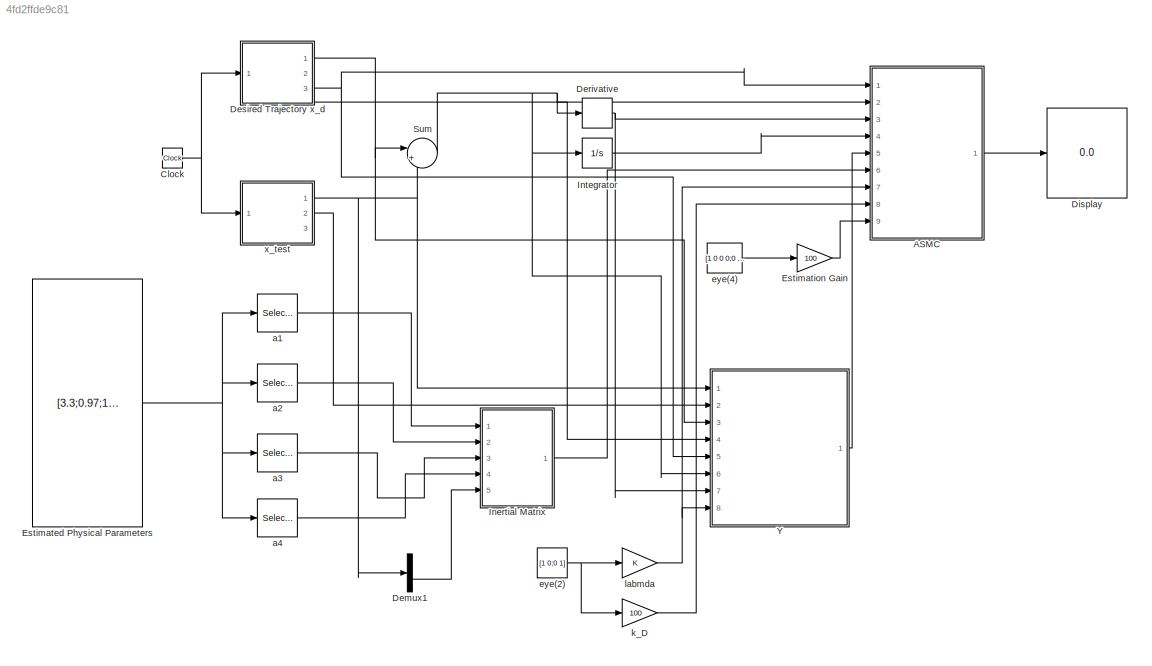
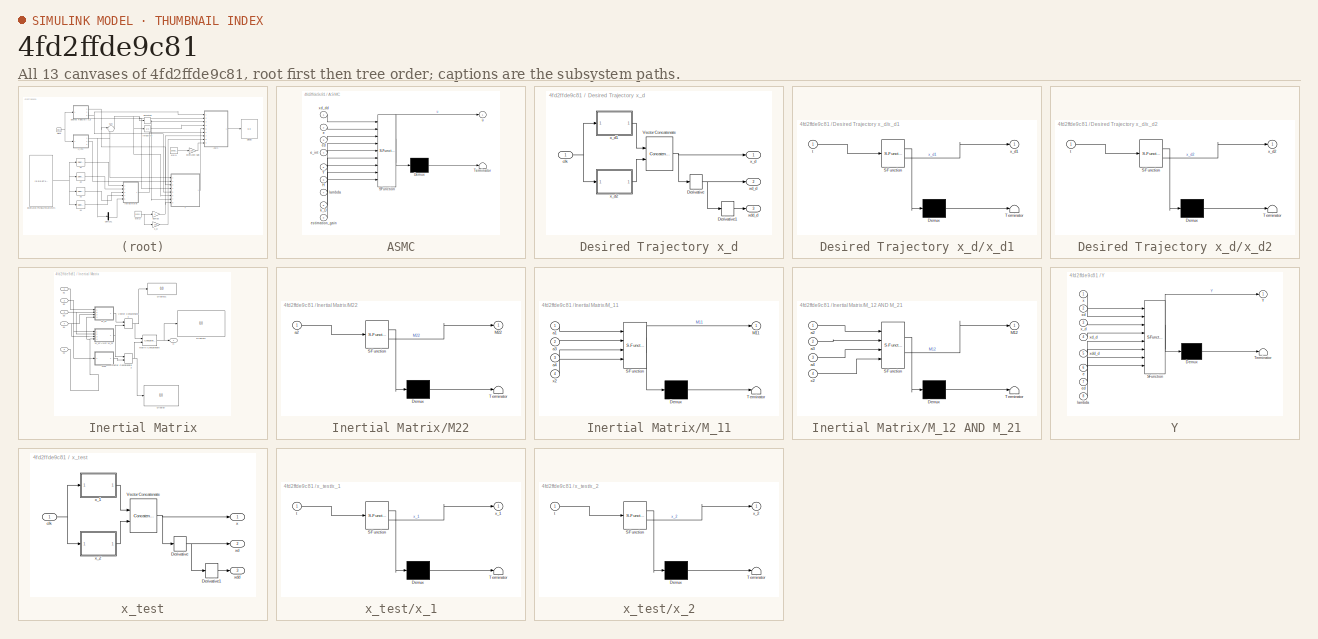
[diagram: thumbnail index - all 13 canvases of the model, root first then tree order]
MODEL slx_4fd2ffde9c81
KIND model
CONFIG AbsTol = auto
CONFIG EnableMultiTasking = off
CONFIG FixedStep = auto
CONFIG MaxStep = auto
CONFIG MinStep = auto
CONFIG RelTol = 1e-3
CONFIG SampleTimeConstraint = Unconstrained
CONFIG SolverName = VariableStepAuto
CONFIG StartTime = 0.0
CONFIG StopTime = 10.0
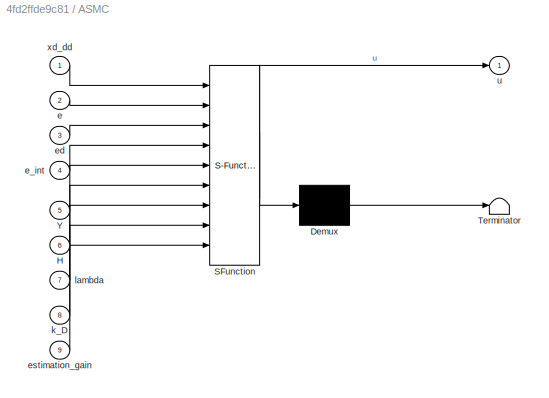
BLOCK [SubSystem] ASMC
  ErrorFcn = Stateflow.Translate.translate
  PermitHierarchicalResolution = ExplicitOnly
  Ports = [9, 1]
  RequestExecContextInheritance = off
  SFBlockType = MATLAB Function
  TreatAsAtomicUnit = on
BLOCK [Demux] ASMC/ Demux 
  Outputs = 1
  Ports = [1, 1]
BLOCK [S-Function] ASMC/ SFunction 
  EnableBusSupport = on
  FunctionName = sf_sfun
  PortCounts = [9 2]
  Ports = [9, 2]
  SFcnIsStateOwnerBlock = off
  SFunctionDeploymentMode = off
  Tag = Stateflow S-Function 3
BLOCK [Terminator] ASMC/ Terminator 
BLOCK [Inport] ASMC/H
  Port = 6
BLOCK [Inport] ASMC/Y
  Port = 5
BLOCK [Inport] ASMC/e
  Port = 2
BLOCK [Inport] ASMC/e_int
  Port = 4
BLOCK [Inport] ASMC/ed
  Port = 3
BLOCK [Inport] ASMC/estimation_gain
  Port = 9
BLOCK [Inport] ASMC/k_D
  Port = 8
BLOCK [Inport] ASMC/lambda
  Port = 7
BLOCK [Outport] ASMC/u
BLOCK [Inport] ASMC/xd_dd
BLOCK [Clock] Clock
BLOCK [Demux] Demux1
  Outputs = 2
  Ports = [1, 2]
BLOCK [Derivative] Derivative
BLOCK [SubSystem] Desired Trajectory x_d
  Ports = [1, 3]
  RequestExecContextInheritance = off
BLOCK [Derivative] Desired Trajectory x_d/Derivative
BLOCK [Derivative] Desired Trajectory x_d/Derivative1
BLOCK [Concatenate] Desired Trajectory x_d/Vector Concatenate
  Ports = [2, 1]
BLOCK [Inport] Desired Trajectory x_d/clk
BLOCK [Outport] Desired Trajectory x_d/x_d
BLOCK [SubSystem] Desired Trajectory x_d/x_d1
  ErrorFcn = Stateflow.Translate.translate
  PermitHierarchicalResolution = ExplicitOnly
  Ports = [1, 1]
  RequestExecContextInheritance = off
  SFBlockType = MATLAB Function
  TreatAsAtomicUnit = on
BLOCK [Demux] Desired Trajectory x_d/x_d1/ Demux 
  Outputs = 1
  Ports = [1, 1]
BLOCK [S-Function] Desired Trajectory x_d/x_d1/ SFunction 
  EnableBusSupport = on
  FunctionName = sf_sfun
  PortCounts = [1 2]
  Ports = [1, 2]
  SFcnIsStateOwnerBlock = off
  SFunctionDeploymentMode = off
  Tag = Stateflow S-Function 2
BLOCK [Terminator] Desired Trajectory x_d/x_d1/ Terminator 
BLOCK [Inport] Desired Trajectory x_d/x_d1/t
BLOCK [Outport] Desired Trajectory x_d/x_d1/x_d1
BLOCK [SubSystem] Desired Trajectory x_d/x_d2
  ErrorFcn = Stateflow.Translate.translate
  PermitHierarchicalResolution = ExplicitOnly
  Ports = [1, 1]
  RequestExecContextInheritance = off
  SFBlockType = MATLAB Function
  TreatAsAtomicUnit = on
BLOCK [Demux] Desired Trajectory x_d/x_d2/ Demux 
  Outputs = 1
  Ports = [1, 1]
BLOCK [S-Function] Desired Trajectory x_d/x_d2/ SFunction 
  EnableBusSupport = on
  FunctionName = sf_sfun
  PortCounts = [1 2]
  Ports = [1, 2]
  SFcnIsStateOwnerBlock = off
  SFunctionDeploymentMode = off
  Tag = Stateflow S-Function 1
BLOCK [Terminator] Desired Trajectory x_d/x_d2/ Terminator 
BLOCK [Inport] Desired Trajectory x_d/x_d2/t
BLOCK [Outport] Desired Trajectory x_d/x_d2/x_d2
BLOCK [Outport] Desired Trajectory x_d/xd_d
  Port = 2
BLOCK [Outport] Desired Trajectory x_d/xdd_d
  Port = 3
BLOCK [Display] Display
  Decimation = 1
  Ports = [1]
BLOCK [Constant] Estimated Physical Parameters
  Value = [3.3;0.97;1.4;0.6]
BLOCK [Gain] Estimation Gain
  Gain = 100
BLOCK [SubSystem] Inertial Matrix
  Ports = [5, 1]
  RequestExecContextInheritance = off
BLOCK [Display] Inertial Matrix/Display
  Decimation = 1
  Ports = [1]
BLOCK [Display] Inertial Matrix/Display1
  Decimation = 1
  Ports = [1]
BLOCK [Display] Inertial Matrix/Display2
  Decimation = 1
  Ports = [1]
BLOCK [Outport] Inertial Matrix/H
BLOCK [SubSystem] Inertial Matrix/M22
  ErrorFcn = Stateflow.Translate.translate
  PermitHierarchicalResolution = ExplicitOnly
  Ports = [1, 1]
  RequestExecContextInheritance = off
  SFBlockType = MATLAB Function
  TreatAsAtomicUnit = on
BLOCK [Demux] Inertial Matrix/M22/ Demux 
  Outputs = 1
  Ports = [1, 1]
BLOCK [S-Function] Inertial Matrix/M22/ SFunction 
  EnableBusSupport = on
  FunctionName = sf_sfun
  PortCounts = [1 2]
  Ports = [1, 2]
  SFcnIsStateOwnerBlock = off
  SFunctionDeploymentMode = off
  Tag = Stateflow S-Function 7
BLOCK [Terminator] Inertial Matrix/M22/ Terminator 
BLOCK [Outport] Inertial Matrix/M22/M22
BLOCK [Inport] Inertial Matrix/M22/a2
BLOCK [SubSystem] Inertial Matrix/M_11
  ErrorFcn = Stateflow.Translate.translate
  PermitHierarchicalResolution = ExplicitOnly
  Ports = [4, 1]
  RequestExecContextInheritance = off
  SFBlockType = MATLAB Function
  TreatAsAtomicUnit = on
BLOCK [Demux] Inertial Matrix/M_11/ Demux 
  Outputs = 1
  Ports = [1, 1]
BLOCK [S-Function] Inertial Matrix/M_11/ SFunction 
  EnableBusSupport = on
  FunctionName = sf_sfun
  PortCounts = [4 2]
  Ports = [4, 2]
  SFcnIsStateOwnerBlock = off
  SFunctionDeploymentMode = off
  Tag = Stateflow S-Function 8
BLOCK [Terminator] Inertial Matrix/M_11/ Terminator 
BLOCK [Outport] Inertial Matrix/M_11/M11
  VectorParamsAs1DForOutWhenUnconnected = off
BLOCK [Inport] Inertial Matrix/M_11/a1
BLOCK [Inport] Inertial Matrix/M_11/a3
  Port = 2
BLOCK [Inport] Inertial Matrix/M_11/a4
  Port = 3
BLOCK [Inport] Inertial Matrix/M_11/x2
  Port = 4
BLOCK [SubSystem] Inertial Matrix/M_12 AND M_21
  ErrorFcn = Stateflow.Translate.translate
  PermitHierarchicalResolution = ExplicitOnly
  Ports = [4, 1]
  RequestExecContextInheritance = off
  SFBlockType = MATLAB Function
  TreatAsAtomicUnit = on
BLOCK [Demux] Inertial Matrix/M_12 AND M_21/ Demux 
  Outputs = 1
  Ports = [1, 1]
BLOCK [S-Function] Inertial Matrix/M_12 AND M_21/ SFunction 
  EnableBusSupport = on
  FunctionName = sf_sfun
  PortCounts = [4 2]
  Ports = [4, 2]
  SFcnIsStateOwnerBlock = off
  SFunctionDeploymentMode = off
  Tag = Stateflow S-Function 9
BLOCK [Terminator] Inertial Matrix/M_12 AND M_21/ Terminator 
BLOCK [Outport] Inertial Matrix/M_12 AND M_21/M12
BLOCK [Inport] Inertial Matrix/M_12 AND M_21/a2
BLOCK [Inport] Inertial Matrix/M_12 AND M_21/a3
  Port = 2
BLOCK [Inport] Inertial Matrix/M_12 AND M_21/a4
  Port = 3
BLOCK [Inport] Inertial Matrix/M_12 AND M_21/x2
  Port = 4
BLOCK [Concatenate] Inertial Matrix/Matrix Concatenate
  ConcatenateDimension = 2
  Mode = Multidimensional array
  Ports = [2, 1]
BLOCK [Concatenate] Inertial Matrix/Vector Concatenate1
  Ports = [2, 1]
BLOCK [Concatenate] Inertial Matrix/Vector Concatenate2
  Ports = [2, 1]
BLOCK [Inport] Inertial Matrix/a1
BLOCK [Inport] Inertial Matrix/a2
  Port = 2
BLOCK [Inport] Inertial Matrix/a3
  Port = 3
BLOCK [Inport] Inertial Matrix/a4
  Port = 4
BLOCK [Inport] Inertial Matrix/x2
  Port = 5
BLOCK [Integrator] Integrator
  LimitOutput = on
  LowerSaturationLimit = 0
  Ports = [1, 1]
BLOCK [Sum] Sum
  Inputs = |+-
  Ports = [2, 1]
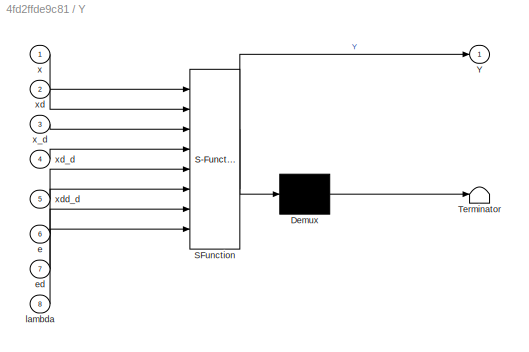
BLOCK [SubSystem] Y
  ErrorFcn = Stateflow.Translate.translate
  PermitHierarchicalResolution = ExplicitOnly
  Ports = [8, 1]
  RequestExecContextInheritance = off
  SFBlockType = MATLAB Function
  TreatAsAtomicUnit = on
BLOCK [Demux] Y/ Demux 
  Outputs = 1
  Ports = [1, 1]
BLOCK [S-Function] Y/ SFunction 
  EnableBusSupport = on
  FunctionName = sf_sfun
  PortCounts = [8 2]
  Ports = [8, 2]
  SFcnIsStateOwnerBlock = off
  SFunctionDeploymentMode = off
  Tag = Stateflow S-Function 25
BLOCK [Terminator] Y/ Terminator 
BLOCK [Outport] Y/Y
BLOCK [Inport] Y/e
  Port = 6
BLOCK [Inport] Y/ed
  Port = 7
BLOCK [Inport] Y/lambda
  Port = 8
BLOCK [Inport] Y/x
BLOCK [Inport] Y/x_d
  Port = 3
BLOCK [Inport] Y/xd
  Port = 2
BLOCK [Inport] Y/xd_d
  Port = 4
BLOCK [Inport] Y/xdd_d
  Port = 5
BLOCK [Selector] a1
  IndexOptions = Index vector (dialog)
  Indices = [1]
  InputPortWidth = 4
  OutputSizes = 1
  Ports = [1, 1]
BLOCK [Selector] a2
  IndexOptions = Index vector (dialog)
  Indices = [2]
  InputPortWidth = 4
  OutputSizes = 1
  Ports = [1, 1]
BLOCK [Selector] a3
  IndexOptions = Index vector (dialog)
  Indices = [3]
  InputPortWidth = 4
  OutputSizes = 1
  Ports = [1, 1]
BLOCK [Selector] a4
  IndexOptions = Index vector (dialog)
  Indices = [4]
  InputPortWidth = 4
  OutputSizes = 1
  Ports = [1, 1]
BLOCK [Constant] eye(2)
  Value = [1 0;0 1]
  VectorParams1D = off
BLOCK [Constant] eye(4)
  Value = [1 0 0 0;0 1 0 0;0 0 1 0;0 0 0 1]
  VectorParams1D = off
BLOCK [Gain] k_D
  Gain = 100
BLOCK [Gain] labmda
BLOCK [SubSystem] x_test
  Ports = [1, 3]
  RequestExecContextInheritance = off
BLOCK [Derivative] x_test/Derivative
BLOCK [Derivative] x_test/Derivative1
BLOCK [Concatenate] x_test/Vector Concatenate
  Ports = [2, 1]
BLOCK [Inport] x_test/clk
BLOCK [Outport] x_test/x
BLOCK [SubSystem] x_test/x_1
  ErrorFcn = Stateflow.Translate.translate
  PermitHierarchicalResolution = ExplicitOnly
  Ports = [1, 1]
  RequestExecContextInheritance = off
  SFBlockType = MATLAB Function
  TreatAsAtomicUnit = on
BLOCK [Demux] x_test/x_1/ Demux 
  Outputs = 1
  Ports = [1, 1]
BLOCK [S-Function] x_test/x_1/ SFunction 
  EnableBusSupport = on
  FunctionName = sf_sfun
  PortCounts = [1 2]
  Ports = [1, 2]
  SFcnIsStateOwnerBlock = off
  SFunctionDeploymentMode = off
  Tag = Stateflow S-Function 4
BLOCK [Terminator] x_test/x_1/ Terminator 
BLOCK [Inport] x_test/x_1/t
BLOCK [Outport] x_test/x_1/x_1
BLOCK [SubSystem] x_test/x_2
  ErrorFcn = Stateflow.Translate.translate
  PermitHierarchicalResolution = ExplicitOnly
  Ports = [1, 1]
  RequestExecContextInheritance = off
  SFBlockType = MATLAB Function
  TreatAsAtomicUnit = on
BLOCK [Demux] x_test/x_2/ Demux 
  Outputs = 1
  Ports = [1, 1]
BLOCK [S-Function] x_test/x_2/ SFunction 
  EnableBusSupport = on
  FunctionName = sf_sfun
  PortCounts = [1 2]
  Ports = [1, 2]
  SFcnIsStateOwnerBlock = off
  SFunctionDeploymentMode = off
  Tag = Stateflow S-Function 5
BLOCK [Terminator] x_test/x_2/ Terminator 
BLOCK [Inport] x_test/x_2/t
BLOCK [Outport] x_test/x_2/x_2
BLOCK [Outport] x_test/xd
  Port = 2
BLOCK [Outport] x_test/xdd
  Port = 3
LINE ASMC:1 -> Display:1
NET Clock:1 -> Desired Trajectory x_d:1, x_test:1
LINE Demux1:2 -> Inertial Matrix:5
NET Derivative:1 -> ASMC:3, Y:7
LINE Desired Trajectory x_d/Derivative1:1 -> Desired Trajectory x_d/xdd_d:1
NET Desired Trajectory x_d/Derivative:1 -> Desired Trajectory x_d/Derivative1:1, Desired Trajectory x_d/xd_d:1
NET Desired Trajectory x_d/Vector Concatenate:1 -> Desired Trajectory x_d/Derivative:1, Desired Trajectory x_d/x_d:1
NET Desired Trajectory x_d/clk:1 -> Desired Trajectory x_d/x_d1:1, Desired Trajectory x_d/x_d2:1
LINE Desired Trajectory x_d/x_d1:1 -> Desired Trajectory x_d/Vector Concatenate:1
LINE Desired Trajectory x_d/x_d2:1 -> Desired Trajectory x_d/Vector Concatenate:2
NET Desired Trajectory x_d:1 -> Sum:1, Y:3
LINE Desired Trajectory x_d:2 -> Y:4
NET Desired Trajectory x_d:3 -> ASMC:1, Y:5
NET Estimated Physical Parameters:1 -> a1:1, a2:1, a3:1, a4:1
LINE Estimation Gain:1 -> ASMC:9
LINE Inertial Matrix/M22:1 -> Inertial Matrix/Vector Concatenate2:2
LINE Inertial Matrix/M_11:1 -> Inertial Matrix/Vector Concatenate1:1
NET Inertial Matrix/M_12 AND M_21:1 -> Inertial Matrix/Vector Concatenate1:2, Inertial Matrix/Vector Concatenate2:1
NET Inertial Matrix/Matrix Concatenate:1 -> Inertial Matrix/Display2:1, Inertial Matrix/H:1
NET Inertial Matrix/Vector Concatenate1:1 -> Inertial Matrix/Display1:1, Inertial Matrix/Matrix Concatenate:1
NET Inertial Matrix/Vector Concatenate2:1 -> Inertial Matrix/Display:1, Inertial Matrix/Matrix Concatenate:2
LINE Inertial Matrix/a1:1 -> Inertial Matrix/M_11:1
NET Inertial Matrix/a2:1 -> Inertial Matrix/M22:1, Inertial Matrix/M_12 AND M_21:1
NET Inertial Matrix/a3:1 -> Inertial Matrix/M_11:2, Inertial Matrix/M_12 AND M_21:2
NET Inertial Matrix/a4:1 -> Inertial Matrix/M_11:3, Inertial Matrix/M_12 AND M_21:3
NET Inertial Matrix/x2:1 -> Inertial Matrix/M_11:4, Inertial Matrix/M_12 AND M_21:4
LINE Inertial Matrix:1 -> ASMC:6
LINE Integrator:1 -> ASMC:4
NET Sum:1 -> ASMC:2, Derivative:1, Integrator:1, Y:6
LINE Y:1 -> ASMC:5
LINE a1:1 -> Inertial Matrix:1
LINE a2:1 -> Inertial Matrix:2
LINE a3:1 -> Inertial Matrix:3
LINE a4:1 -> Inertial Matrix:4
NET eye(2):1 -> k_D:1, labmda:1
LINE eye(4):1 -> Estimation Gain:1
LINE k_D:1 -> ASMC:8
NET labmda:1 -> ASMC:7, Y:8
LINE x_test/Derivative1:1 -> x_test/xdd:1
NET x_test/Derivative:1 -> x_test/Derivative1:1, x_test/xd:1
NET x_test/Vector Concatenate:1 -> x_test/Derivative:1, x_test/x:1
NET x_test/clk:1 -> x_test/x_1:1, x_test/x_2:1
LINE x_test/x_1:1 -> x_test/Vector Concatenate:1
LINE x_test/x_2:1 -> x_test/Vector Concatenate:2
NET x_test:1 -> Demux1:1, Sum:2, Y:1
LINE x_test:2 -> Y:2
note: NET lines group one-source signal fan-out (src -> all destinations, sorted); 1:1 wires keep LINE
CHART Desired Trajectory x_d/x_d2 states=1 transitions=1
  STATE_LABEL 'eML_blk_kernel()'
  STATE_LABEL 'SCRIPT:\nfunction x_d2 = fcn(t)\n\nx_d2 = pi/6 * (1 - cos(2 * pi * t) + sin(1.5 * pi * t));\n'
CHART Desired Trajectory x_d/x_d1 states=1 transitions=1
  STATE_LABEL 'eML_blk_kernel()'
  STATE_LABEL 'SCRIPT:\nfunction x_d1 = fcn(t)\n\nx_d1 = pi/6 * (1 - cos(1.5 * pi * t) + sin(pi * t));\n'
CHART ASMC states=1 transitions=1
  STATE_LABEL 'eML_blk_kernel()'
  STATE_LABEL 'SCRIPT:\nfunction u = ASMC(xd_dd, e, ed, e_int, Y, H, lambda, k_D, estimation_gain)\n\nu = ASMC(xd_dd, e, ed, e_int, Y, H, lambda, k_D, estimation_gain);\n\nend\n'
CHART x_test/x_1 states=1 transitions=1
  STATE_LABEL 'eML_blk_kernel()'
  STATE_LABEL 'SCRIPT:\nfunction x_1 = x1(t)\n\nx_1 = pi/6 * (1 - sin(5.5 * pi * t) + sin(5*pi * t));\n'
CHART x_test/x_2 states=1 transitions=1
  STATE_LABEL 'eML_blk_kernel()'
  STATE_LABEL 'SCRIPT:\nfunction x_2 = x2(t)\n\nx_2 = pi/12 * (1 - cos(2.5 * pi * t) + cos(1.5 * pi * t));\n'
CHART Inertial Matrix/M22 states=1 transitions=1
  STATE_LABEL 'eML_blk_kernel()'
  STATE_LABEL 'SCRIPT:\nfunction M22 = fcn(a2)\n\nM22 = a2;\n'
CHART Inertial Matrix/M_11 states=1 transitions=1
  STATE_LABEL 'eML_blk_kernel()'
  STATE_LABEL 'SCRIPT:\nfunction M11 = fcn(a1, a3, a4, x2)\n%#codegen\n\nM11 = a1 + 2*a3 * cos(x2)- 2 * a4 * sin(x2);'
CHART Inertial Matrix/M_12 AND M_21 states=1 transitions=1
  STATE_LABEL 'eML_blk_kernel()'
  STATE_LABEL 'SCRIPT:\nfunction M12 = fcn(a2, a3, a4, x2)\n\nM12 = a2 + a3 * cos(x2) + a4 * sin(x2);\n'
CHART Y states=1 transitions=1
  STATE_LABEL 'eML_blk_kernel()'
  STATE_LABEL 'SCRIPT:\nfunction Y = calculateY(x, xd, x_d, xd_d, xdd_d, e, ed, lambda)\nY = system_signals(x, xd, x_d, xd_d, xdd_d, e, ed, lambda);\nend'
CHART  states=0 transitions=0
CHART  states=0 transitions=0
CHART  states=0 transitions=0
CHART  states=0 transitions=0
CHART  states=0 transitions=0
CHART  states=0 transitions=0
CHART  states=0 transitions=0
CHART  states=0 transitions=0
CHART  states=0 transitions=0
